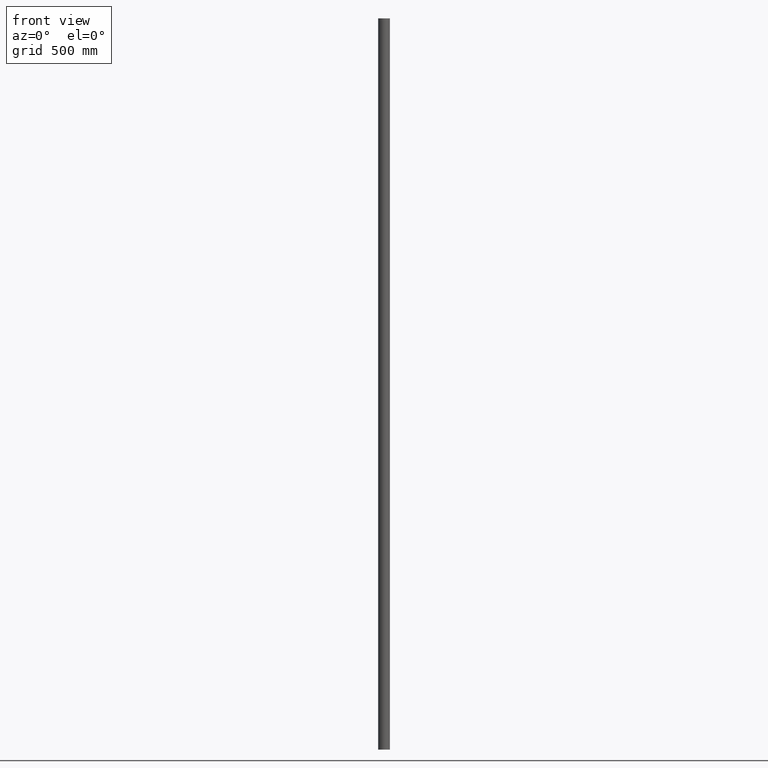
[diagram: clean part render]
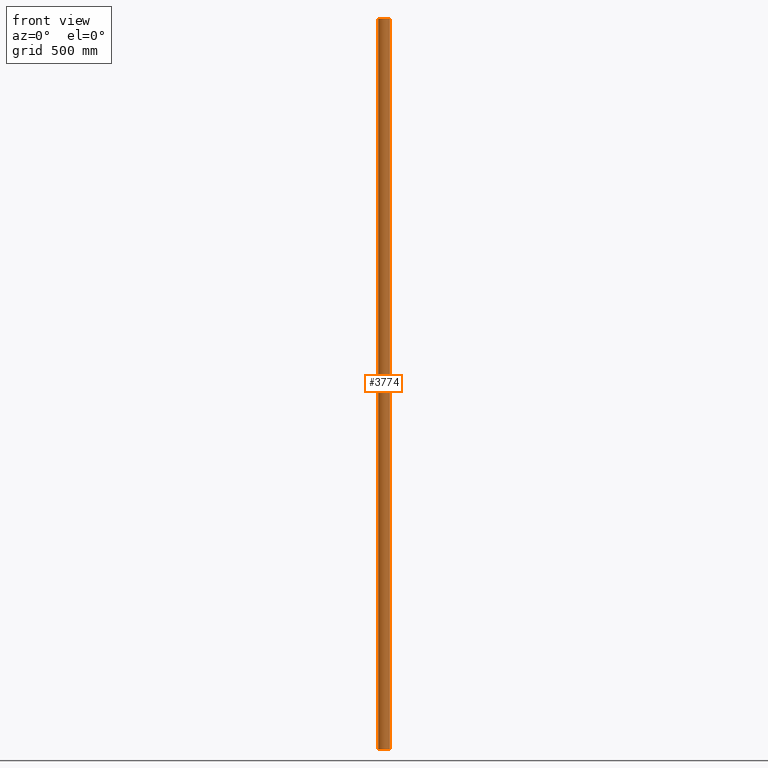
[diagram: same view with one face highlighted and labeled with its STEP entity id]
A machine part, front view. The second image highlights one B-rep face of the part: STEP entity #3774.
In plain terms, the highlighted cylindrical surface (bore or boss wall) has radius 24.15 mm, axis along (-0, -0, -1).
Its self-contained STEP definition (entity closure, byte-faithful):
#644 = VERTEX_POINT ( 'NONE', #5103 ) ;
#772 = ORIENTED_EDGE ( 'NONE', *, *, #6229, .T. ) ;
#2131 = CARTESIAN_POINT ( 'NONE',  ( 0.000000000000000000, 0.000000000000000000, 1500.000000000000000 ) ) ;
#2645 = EDGE_CURVE ( 'NONE', #644, #644, #7286, .T. ) ;
#3687 = EDGE_LOOP ( 'NONE', ( #10530 ) ) ;
#3774 = ADVANCED_FACE ( 'NONE', ( #12958, #5690 ), #10564, .T. ) ;
#3891 = CARTESIAN_POINT ( 'NONE',  ( 0.000000000000000000, 0.000000000000000000, -1500.000000000000000 ) ) ;
#4429 = DIRECTION ( 'NONE',  ( 1.000000000000000000, 0.000000000000000000, 0.000000000000000000 ) ) ;
#4776 = AXIS2_PLACEMENT_3D ( 'NONE', #3891, #12812, #10664 ) ;
#5103 = CARTESIAN_POINT ( 'NONE',  ( 24.14999999999999858, 0.000000000000000000, 1500.000000000000000 ) ) ;
#5690 = FACE_OUTER_BOUND ( 'NONE', #12310, .T. ) ;
#6229 = EDGE_CURVE ( 'NONE', #7933, #7933, #7037, .T. ) ;
#6701 = DIRECTION ( 'NONE',  ( -0.000000000000000000, -0.000000000000000000, -1.000000000000000000 ) ) ;
#7037 = CIRCLE ( 'NONE', #4776, 24.14999999999999858 ) ;
#7286 = CIRCLE ( 'NONE', #9030, 24.14999999999999858 ) ;
#7933 = VERTEX_POINT ( 'NONE', #12933 ) ;
#8873 = DIRECTION ( 'NONE',  ( 0.000000000000000000, 0.000000000000000000, 1.000000000000000000 ) ) ;
#8939 = CARTESIAN_POINT ( 'NONE',  ( 0.000000000000000000, 0.000000000000000000, 1500.000000000000000 ) ) ;
#9030 = AXIS2_PLACEMENT_3D ( 'NONE', #2131, #8873, #4429 ) ;
#9876 = DIRECTION ( 'NONE',  ( -1.000000000000000000, 0.000000000000000000, 0.000000000000000000 ) ) ;
#10530 = ORIENTED_EDGE ( 'NONE', *, *, #2645, .F. ) ;
#10564 = CYLINDRICAL_SURFACE ( 'NONE', #14037, 24.14999999999999858 ) ;
#10664 = DIRECTION ( 'NONE',  ( 1.000000000000000000, 0.000000000000000000, 0.000000000000000000 ) ) ;
#12310 = EDGE_LOOP ( 'NONE', ( #772 ) ) ;
#12812 = DIRECTION ( 'NONE',  ( 0.000000000000000000, 0.000000000000000000, 1.000000000000000000 ) ) ;
#12933 = CARTESIAN_POINT ( 'NONE',  ( 24.14999999999999858, 0.000000000000000000, -1500.000000000000000 ) ) ;
#12958 = FACE_OUTER_BOUND ( 'NONE', #3687, .T. ) ;
#14037 = AXIS2_PLACEMENT_3D ( 'NONE', #8939, #6701, #9876 ) ;